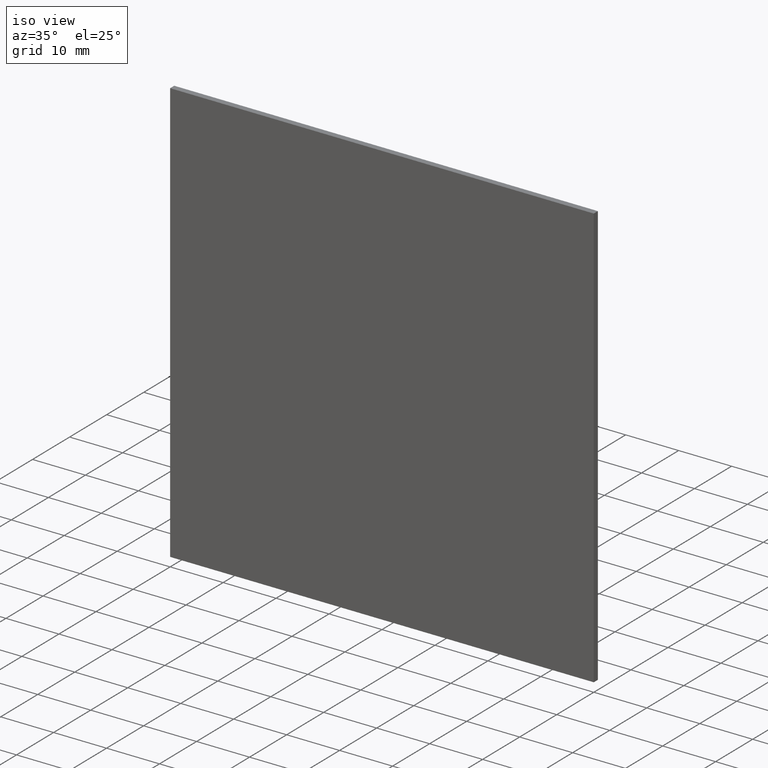
[diagram: clean part render]
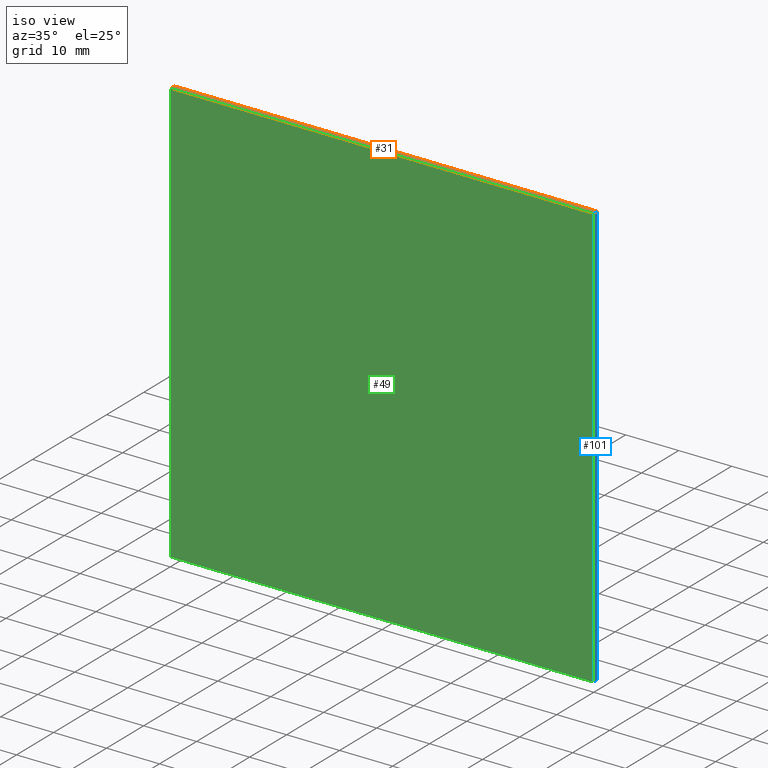
[diagram: same view with three faces highlighted in distinct colors, each labeled with its STEP entity id]
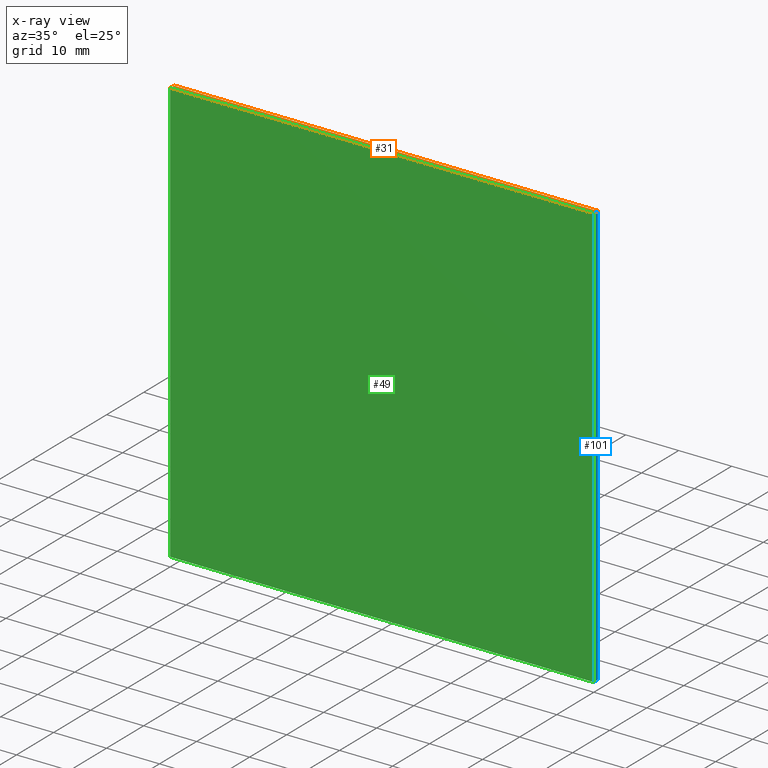
[diagram: x-ray of the same camera — body ghosted, the three highlighted faces saturated]
A machine part, iso view with three faces highlighted in distinct colors.
The next image is the same camera in x-ray (body ghosted, the three faces saturated) — at least one of them is partly hidden behind the body in this view.
Their STEP definitions:

[orange] entity #31 — the highlighted planar face has unit normal (0, 0, -1).
#5 = ORIENTED_EDGE ( 'NONE', *, *, #111, .F. ) ;
#9 = ORIENTED_EDGE ( 'NONE', *, *, #91, .T. ) ;
#16 = CARTESIAN_POINT ( 'NONE',  ( -40.00000000000000700, 0.0000000000000000000, 39.99999999999999300 ) ) ;
#23 = DIRECTION ( 'NONE',  ( 1.000000000000000000, 0.0000000000000000000, 0.0000000000000000000 ) ) ;
#29 = EDGE_CURVE ( 'NONE', #140, #144, #138, .T. ) ;
#31 = ADVANCED_FACE ( 'NONE', ( #85 ), #190, .F. ) ;
#39 = DIRECTION ( 'NONE',  ( -0.0000000000000000000, -1.000000000000000000, -0.0000000000000000000 ) ) ;
#41 = VERTEX_POINT ( 'NONE', #194 ) ;
#47 = CARTESIAN_POINT ( 'NONE',  ( -40.00000000000000700, 1.100000000000000100, 39.99999999999999300 ) ) ;
#50 = DIRECTION ( 'NONE',  ( 1.000000000000000000, 0.0000000000000000000, 0.0000000000000000000 ) ) ;
#56 = DIRECTION ( 'NONE',  ( 0.0000000000000000000, 0.0000000000000000000, -1.000000000000000000 ) ) ;
#57 = VECTOR ( 'NONE', #23, 1000.000000000000000 ) ;
#62 = VECTOR ( 'NONE', #149, 1000.000000000000000 ) ;
#66 = AXIS2_PLACEMENT_3D ( 'NONE', #169, #56, #182 ) ;
#67 = CARTESIAN_POINT ( 'NONE',  ( 39.99999999999999300, 1.100000000000000100, 39.99999999999999300 ) ) ;
#71 = ORIENTED_EDGE ( 'NONE', *, *, #155, .F. ) ;
#76 = CARTESIAN_POINT ( 'NONE',  ( 39.99999999999999300, 0.0000000000000000000, 39.99999999999999300 ) ) ;
#85 = FACE_OUTER_BOUND ( 'NONE', #185, .T. ) ;
#91 = EDGE_CURVE ( 'NONE', #162, #140, #148, .T. ) ;
#110 = ORIENTED_EDGE ( 'NONE', *, *, #29, .T. ) ;
#111 = EDGE_CURVE ( 'NONE', #41, #144, #176, .T. ) ;
#117 = CARTESIAN_POINT ( 'NONE',  ( -40.00000000000000700, 1.100000000000000100, 39.99999999999999300 ) ) ;
#130 = VECTOR ( 'NONE', #50, 1000.000000000000000 ) ;
#138 = LINE ( 'NONE', #16, #130 ) ;
#140 = VERTEX_POINT ( 'NONE', #152 ) ;
#144 = VERTEX_POINT ( 'NONE', #76 ) ;
#148 = LINE ( 'NONE', #47, #201 ) ;
#149 = DIRECTION ( 'NONE',  ( -0.0000000000000000000, -1.000000000000000000, -0.0000000000000000000 ) ) ;
#152 = CARTESIAN_POINT ( 'NONE',  ( -40.00000000000000700, 0.0000000000000000000, 39.99999999999999300 ) ) ;
#155 = EDGE_CURVE ( 'NONE', #162, #41, #175, .T. ) ;
#162 = VERTEX_POINT ( 'NONE', #117 ) ;
#169 = CARTESIAN_POINT ( 'NONE',  ( -40.00000000000000700, 1.100000000000000100, 39.99999999999999300 ) ) ;
#175 = LINE ( 'NONE', #195, #57 ) ;
#176 = LINE ( 'NONE', #67, #62 ) ;
#182 = DIRECTION ( 'NONE',  ( -1.000000000000000000, 0.0000000000000000000, -0.0000000000000000000 ) ) ;
#185 = EDGE_LOOP ( 'NONE', ( #110, #5, #71, #9 ) ) ;
#190 = PLANE ( 'NONE',  #66 ) ;
#194 = CARTESIAN_POINT ( 'NONE',  ( 39.99999999999999300, 1.100000000000000100, 39.99999999999999300 ) ) ;
#195 = CARTESIAN_POINT ( 'NONE',  ( -40.00000000000000700, 1.100000000000000100, 39.99999999999999300 ) ) ;
#201 = VECTOR ( 'NONE', #39, 1000.000000000000000 ) ;

[blue] entity #101 — the highlighted planar face has unit normal (-1, 0, -0).
#8 = FACE_OUTER_BOUND ( 'NONE', #64, .T. ) ;
#11 = VECTOR ( 'NONE', #36, 1000.000000000000000 ) ;
#17 = VERTEX_POINT ( 'NONE', #189 ) ;
#22 = ORIENTED_EDGE ( 'NONE', *, *, #150, .F. ) ;
#34 = CARTESIAN_POINT ( 'NONE',  ( 40.00000000000000000, 1.100000000000000100, -40.00000000000000700 ) ) ;
#36 = DIRECTION ( 'NONE',  ( 8.673617379884035500E-017, -0.0000000000000000000, -1.000000000000000000 ) ) ;
#37 = CARTESIAN_POINT ( 'NONE',  ( 40.00000000000000000, 1.100000000000000100, -40.00000000000000700 ) ) ;
#41 = VERTEX_POINT ( 'NONE', #194 ) ;
#42 = VECTOR ( 'NONE', #60, 1000.000000000000000 ) ;
#51 = VECTOR ( 'NONE', #178, 1000.000000000000000 ) ;
#60 = DIRECTION ( 'NONE',  ( 8.673617379884035500E-017, -0.0000000000000000000, -1.000000000000000000 ) ) ;
#61 = ORIENTED_EDGE ( 'NONE', *, *, #109, .T. ) ;
#62 = VECTOR ( 'NONE', #149, 1000.000000000000000 ) ;
#64 = EDGE_LOOP ( 'NONE', ( #61, #22, #95, #143 ) ) ;
#67 = CARTESIAN_POINT ( 'NONE',  ( 39.99999999999999300, 1.100000000000000100, 39.99999999999999300 ) ) ;
#75 = DIRECTION ( 'NONE',  ( -8.673617379884034200E-017, 0.0000000000000000000, 1.000000000000000000 ) ) ;
#76 = CARTESIAN_POINT ( 'NONE',  ( 39.99999999999999300, 0.0000000000000000000, 39.99999999999999300 ) ) ;
#95 = ORIENTED_EDGE ( 'NONE', *, *, #100, .F. ) ;
#96 = CARTESIAN_POINT ( 'NONE',  ( 40.00000000000000000, 1.100000000000000100, -40.00000000000000700 ) ) ;
#98 = LINE ( 'NONE', #96, #42 ) ;
#99 = CARTESIAN_POINT ( 'NONE',  ( 40.00000000000000000, 1.100000000000000100, -40.00000000000000700 ) ) ;
#100 = EDGE_CURVE ( 'NONE', #41, #153, #98, .T. ) ;
#101 = ADVANCED_FACE ( 'NONE', ( #8 ), #167, .F. ) ;
#109 = EDGE_CURVE ( 'NONE', #144, #17, #186, .T. ) ;
#111 = EDGE_CURVE ( 'NONE', #41, #144, #176, .T. ) ;
#137 = LINE ( 'NONE', #37, #51 ) ;
#143 = ORIENTED_EDGE ( 'NONE', *, *, #111, .T. ) ;
#144 = VERTEX_POINT ( 'NONE', #76 ) ;
#149 = DIRECTION ( 'NONE',  ( -0.0000000000000000000, -1.000000000000000000, -0.0000000000000000000 ) ) ;
#150 = EDGE_CURVE ( 'NONE', #153, #17, #137, .T. ) ;
#151 = CARTESIAN_POINT ( 'NONE',  ( 40.00000000000000000, 0.0000000000000000000, -40.00000000000000700 ) ) ;
#153 = VERTEX_POINT ( 'NONE', #99 ) ;
#167 = PLANE ( 'NONE',  #177 ) ;
#176 = LINE ( 'NONE', #67, #62 ) ;
#177 = AXIS2_PLACEMENT_3D ( 'NONE', #34, #193, #75 ) ;
#178 = DIRECTION ( 'NONE',  ( -0.0000000000000000000, -1.000000000000000000, -0.0000000000000000000 ) ) ;
#186 = LINE ( 'NONE', #151, #11 ) ;
#189 = CARTESIAN_POINT ( 'NONE',  ( 40.00000000000000000, 0.0000000000000000000, -40.00000000000000700 ) ) ;
#193 = DIRECTION ( 'NONE',  ( -1.000000000000000000, 0.0000000000000000000, -8.673617379884034200E-017 ) ) ;
#194 = CARTESIAN_POINT ( 'NONE',  ( 39.99999999999999300, 1.100000000000000100, 39.99999999999999300 ) ) ;

[green] entity #49 — the highlighted planar face has unit normal (0, 1, -0).
#11 = VECTOR ( 'NONE', #36, 1000.000000000000000 ) ;
#13 = ORIENTED_EDGE ( 'NONE', *, *, #118, .F. ) ;
#15 = DIRECTION ( 'NONE',  ( 0.0000000000000000000, 0.0000000000000000000, 1.000000000000000000 ) ) ;
#16 = CARTESIAN_POINT ( 'NONE',  ( -40.00000000000000700, 0.0000000000000000000, 39.99999999999999300 ) ) ;
#17 = VERTEX_POINT ( 'NONE', #189 ) ;
#29 = EDGE_CURVE ( 'NONE', #140, #144, #138, .T. ) ;
#32 = CARTESIAN_POINT ( 'NONE',  ( 0.0000000000000000000, 0.0000000000000000000, 0.0000000000000000000 ) ) ;
#35 = CARTESIAN_POINT ( 'NONE',  ( -40.00000000000001400, 0.0000000000000000000, -40.00000000000000700 ) ) ;
#36 = DIRECTION ( 'NONE',  ( 8.673617379884035500E-017, -0.0000000000000000000, -1.000000000000000000 ) ) ;
#49 = ADVANCED_FACE ( 'NONE', ( #197 ), #87, .F. ) ;
#50 = DIRECTION ( 'NONE',  ( 1.000000000000000000, 0.0000000000000000000, 0.0000000000000000000 ) ) ;
#58 = CARTESIAN_POINT ( 'NONE',  ( -40.00000000000001400, 0.0000000000000000000, -40.00000000000000700 ) ) ;
#76 = CARTESIAN_POINT ( 'NONE',  ( 39.99999999999999300, 0.0000000000000000000, 39.99999999999999300 ) ) ;
#78 = EDGE_LOOP ( 'NONE', ( #90, #126, #13, #104 ) ) ;
#80 = VECTOR ( 'NONE', #181, 1000.000000000000000 ) ;
#87 = PLANE ( 'NONE',  #132 ) ;
#90 = ORIENTED_EDGE ( 'NONE', *, *, #109, .F. ) ;
#104 = ORIENTED_EDGE ( 'NONE', *, *, #199, .F. ) ;
#106 = VECTOR ( 'NONE', #196, 1000.000000000000000 ) ;
#109 = EDGE_CURVE ( 'NONE', #144, #17, #186, .T. ) ;
#114 = DIRECTION ( 'NONE',  ( 0.0000000000000000000, 1.000000000000000000, -0.0000000000000000000 ) ) ;
#118 = EDGE_CURVE ( 'NONE', #133, #140, #166, .T. ) ;
#122 = LINE ( 'NONE', #35, #80 ) ;
#126 = ORIENTED_EDGE ( 'NONE', *, *, #29, .F. ) ;
#130 = VECTOR ( 'NONE', #50, 1000.000000000000000 ) ;
#132 = AXIS2_PLACEMENT_3D ( 'NONE', #32, #114, #15 ) ;
#133 = VERTEX_POINT ( 'NONE', #135 ) ;
#135 = CARTESIAN_POINT ( 'NONE',  ( -40.00000000000001400, 0.0000000000000000000, -40.00000000000000700 ) ) ;
#138 = LINE ( 'NONE', #16, #130 ) ;
#140 = VERTEX_POINT ( 'NONE', #152 ) ;
#144 = VERTEX_POINT ( 'NONE', #76 ) ;
#151 = CARTESIAN_POINT ( 'NONE',  ( 40.00000000000000000, 0.0000000000000000000, -40.00000000000000700 ) ) ;
#152 = CARTESIAN_POINT ( 'NONE',  ( -40.00000000000000700, 0.0000000000000000000, 39.99999999999999300 ) ) ;
#166 = LINE ( 'NONE', #58, #106 ) ;
#181 = DIRECTION ( 'NONE',  ( -1.000000000000000000, -0.0000000000000000000, -0.0000000000000000000 ) ) ;
#186 = LINE ( 'NONE', #151, #11 ) ;
#189 = CARTESIAN_POINT ( 'NONE',  ( 40.00000000000000000, 0.0000000000000000000, -40.00000000000000700 ) ) ;
#196 = DIRECTION ( 'NONE',  ( 8.673617379884035500E-017, 0.0000000000000000000, 1.000000000000000000 ) ) ;
#197 = FACE_OUTER_BOUND ( 'NONE', #78, .T. ) ;
#199 = EDGE_CURVE ( 'NONE', #17, #133, #122, .T. ) ;